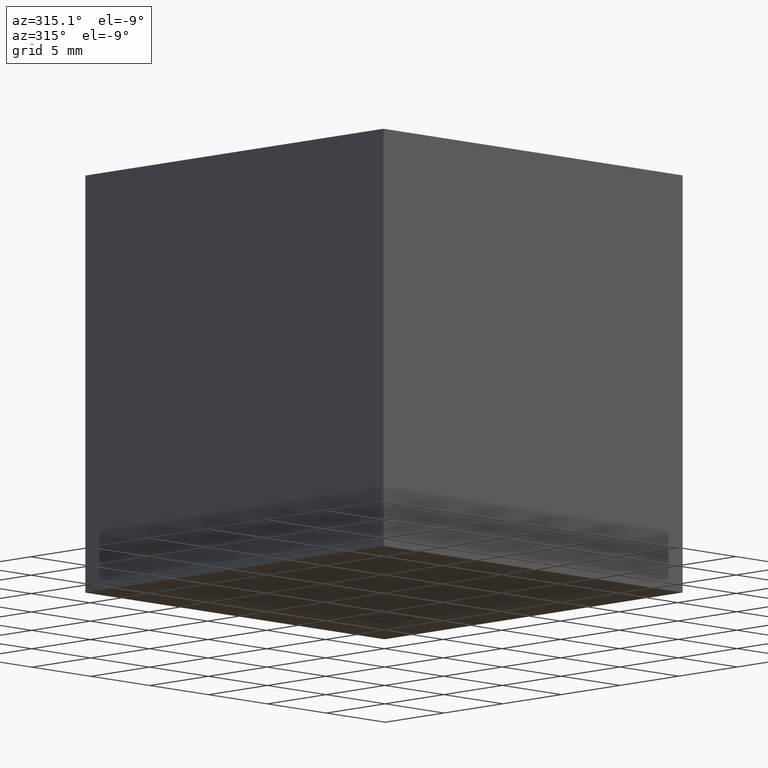
[diagram: clean part render]
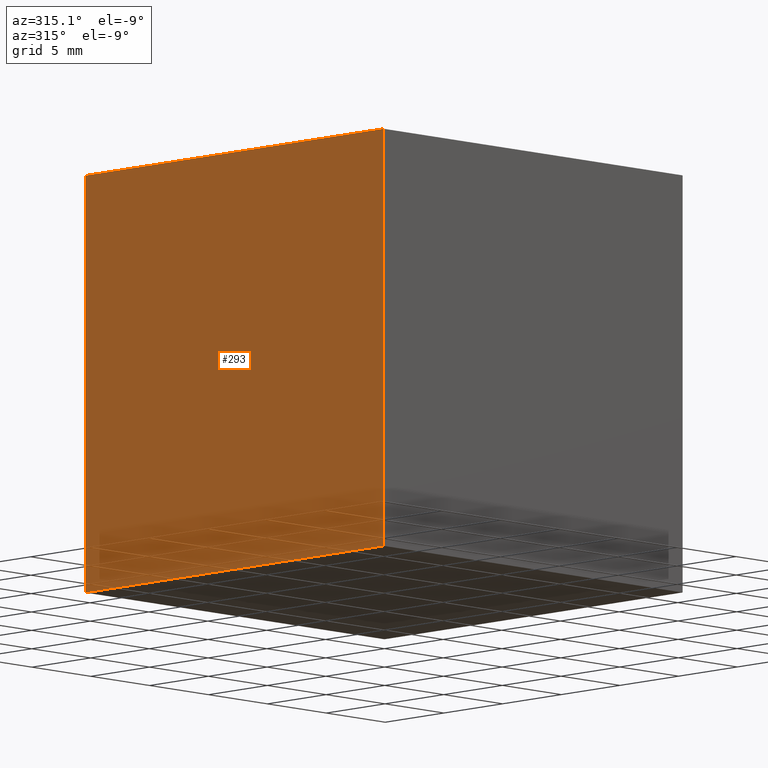
[diagram: same view with one face highlighted and labeled with its STEP entity id]
A machine part, auxiliary view. The second image highlights one B-rep face of the part: STEP entity #293.
In plain terms, the highlighted planar face has unit normal (1, -0, 0).
Its self-contained STEP definition (entity closure, byte-faithful):
#4 = LINE ( 'NONE', #70, #71 ) ;
#6 = FACE_OUTER_BOUND ( 'NONE', #54, .T. ) ;
#9 = CARTESIAN_POINT ( 'NONE',  ( 0.0000000000000000000, 0.0000000000000000000, -25.39999999999999900 ) ) ;
#26 = DIRECTION ( 'NONE',  ( -0.0000000000000000000, -0.0000000000000000000, 1.000000000000000000 ) ) ;
#40 = DIRECTION ( 'NONE',  ( -0.0000000000000000000, -1.000000000000000000, -0.0000000000000000000 ) ) ;
#46 = VECTOR ( 'NONE', #136, 1000.000000000000000 ) ;
#54 = EDGE_LOOP ( 'NONE', ( #113, #295, #90, #123 ) ) ;
#70 = CARTESIAN_POINT ( 'NONE',  ( 0.0000000000000000000, 25.39999999999999900, 0.0000000000000000000 ) ) ;
#71 = VECTOR ( 'NONE', #120, 1000.000000000000000 ) ;
#86 = LINE ( 'NONE', #159, #266 ) ;
#90 = ORIENTED_EDGE ( 'NONE', *, *, #162, .F. ) ;
#97 = LINE ( 'NONE', #111, #142 ) ;
#101 = PLANE ( 'NONE',  #287 ) ;
#107 = VERTEX_POINT ( 'NONE', #9 ) ;
#109 = CARTESIAN_POINT ( 'NONE',  ( 0.0000000000000000000, 25.39999999999999900, 0.0000000000000000000 ) ) ;
#111 = CARTESIAN_POINT ( 'NONE',  ( 0.0000000000000000000, 0.0000000000000000000, 0.0000000000000000000 ) ) ;
#113 = ORIENTED_EDGE ( 'NONE', *, *, #239, .T. ) ;
#120 = DIRECTION ( 'NONE',  ( -0.0000000000000000000, -0.0000000000000000000, 1.000000000000000000 ) ) ;
#123 = ORIENTED_EDGE ( 'NONE', *, *, #198, .T. ) ;
#136 = DIRECTION ( 'NONE',  ( -0.0000000000000000000, -1.000000000000000000, -0.0000000000000000000 ) ) ;
#142 = VECTOR ( 'NONE', #26, 1000.000000000000000 ) ;
#147 = VERTEX_POINT ( 'NONE', #167 ) ;
#159 = CARTESIAN_POINT ( 'NONE',  ( 0.0000000000000000000, 25.39999999999999900, -25.39999999999999900 ) ) ;
#161 = CARTESIAN_POINT ( 'NONE',  ( 0.0000000000000000000, 25.39999999999999900, 0.0000000000000000000 ) ) ;
#162 = EDGE_CURVE ( 'NONE', #147, #291, #4, .T. ) ;
#167 = CARTESIAN_POINT ( 'NONE',  ( 0.0000000000000000000, 25.39999999999999900, -25.39999999999999900 ) ) ;
#183 = DIRECTION ( 'NONE',  ( 1.000000000000000000, -0.0000000000000000000, 0.0000000000000000000 ) ) ;
#185 = CARTESIAN_POINT ( 'NONE',  ( 0.0000000000000000000, 0.0000000000000000000, 0.0000000000000000000 ) ) ;
#198 = EDGE_CURVE ( 'NONE', #147, #107, #86, .T. ) ;
#210 = DIRECTION ( 'NONE',  ( 0.0000000000000000000, 0.0000000000000000000, -1.000000000000000000 ) ) ;
#212 = VERTEX_POINT ( 'NONE', #185 ) ;
#218 = EDGE_CURVE ( 'NONE', #291, #212, #282, .T. ) ;
#235 = CARTESIAN_POINT ( 'NONE',  ( 0.0000000000000000000, 25.39999999999999900, 0.0000000000000000000 ) ) ;
#239 = EDGE_CURVE ( 'NONE', #107, #212, #97, .T. ) ;
#266 = VECTOR ( 'NONE', #40, 1000.000000000000000 ) ;
#282 = LINE ( 'NONE', #235, #46 ) ;
#287 = AXIS2_PLACEMENT_3D ( 'NONE', #109, #183, #210 ) ;
#291 = VERTEX_POINT ( 'NONE', #161 ) ;
#293 = ADVANCED_FACE ( 'NONE', ( #6 ), #101, .F. ) ;
#295 = ORIENTED_EDGE ( 'NONE', *, *, #218, .F. ) ;